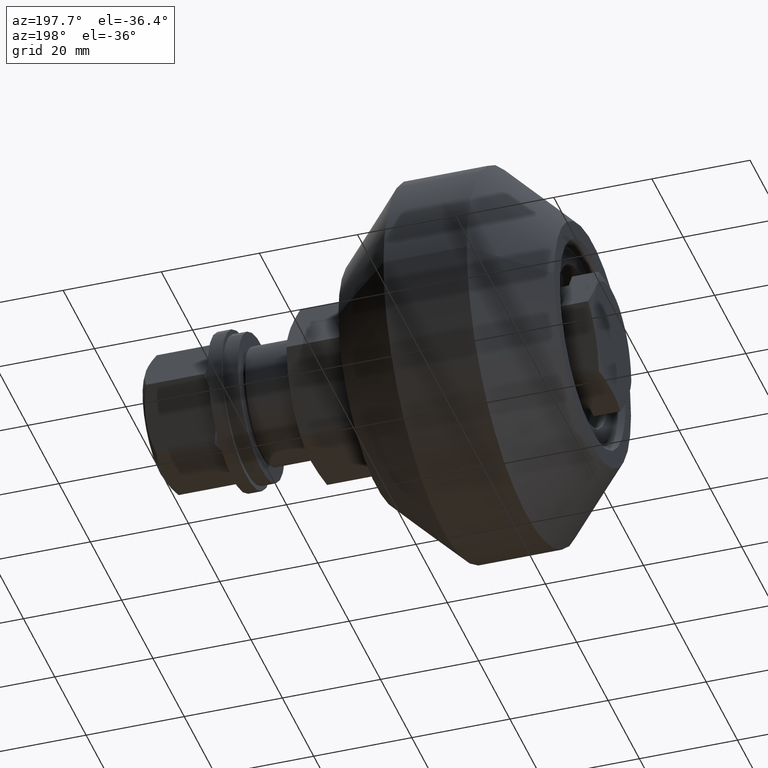
[diagram: clean part render]
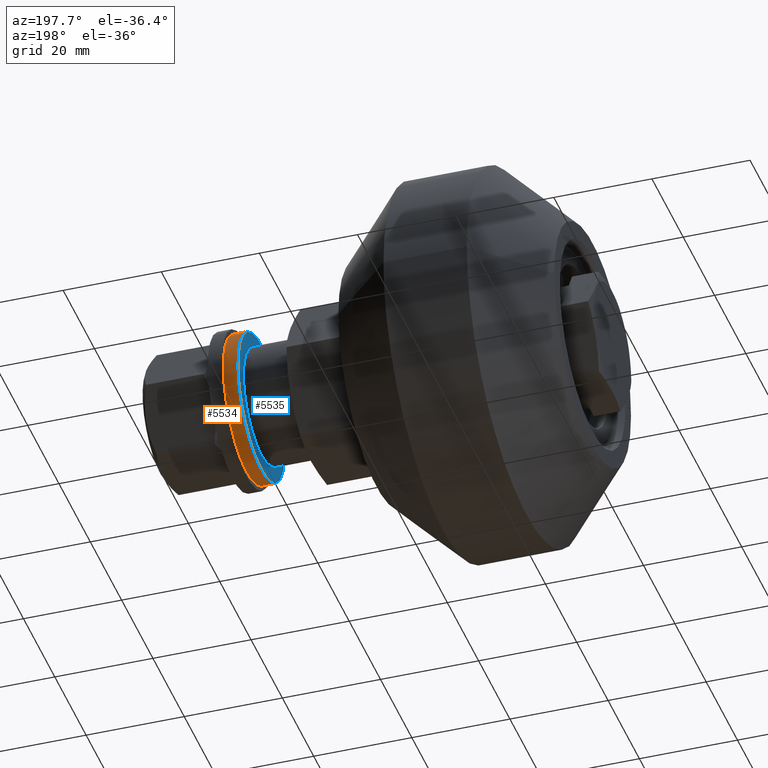
[diagram: same view with the hole feature highlighted: cylindrical wall and planar end face, labeled with their STEP entity ids]
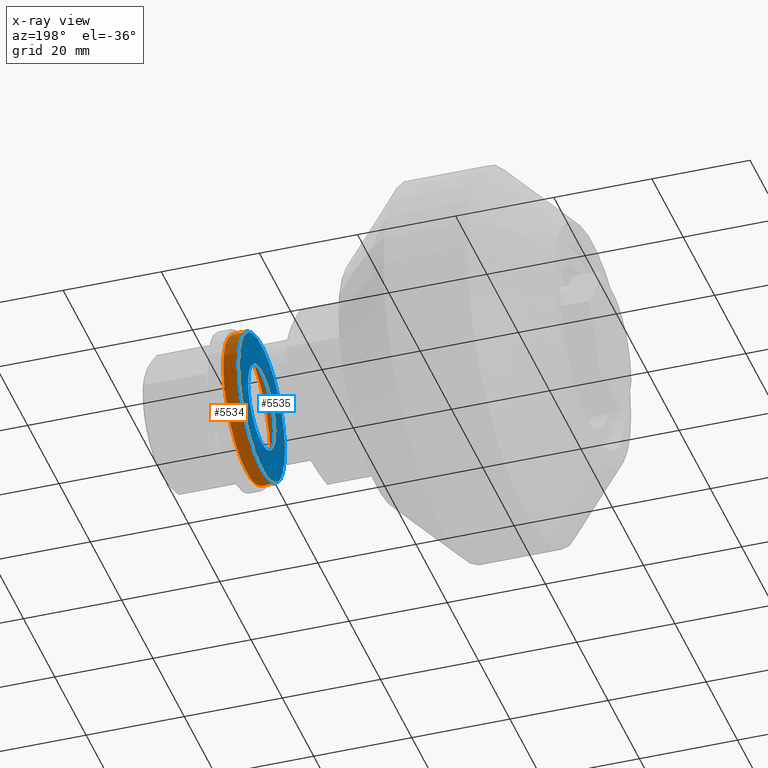
[diagram: x-ray of the same camera — body ghosted, the hole faces saturated]
A machine part, auxiliary view. The highlighted faces form one hole feature of diameter 30 mm: the cylindrical wall (entity #5534, orange) and its adjacent planar end face (entity #5535, blue) — they share a circular edge in the B-rep.
The next image is the same camera in x-ray (body ghosted, the hole faces saturated) — the bore reads through the body.
Wall:
#581=CYLINDRICAL_SURFACE('',#6230,15.);
#797=FACE_OUTER_BOUND('',#1098,.T.);
#1098=EDGE_LOOP('',(#4763,#4764,#4765,#4766));
#1491=LINE('',#9470,#1809);
#1809=VECTOR('',#7523,15.);
#2060=CIRCLE('',#6231,15.);
#2061=CIRCLE('',#6232,15.);
#2566=VERTEX_POINT('',#9467);
#2567=VERTEX_POINT('',#9469);
#3334=EDGE_CURVE('',#2566,#2566,#2060,.T.);
#3335=EDGE_CURVE('',#2566,#2567,#1491,.T.);
#3336=EDGE_CURVE('',#2567,#2567,#2061,.T.);
#4763=ORIENTED_EDGE('',*,*,#3334,.T.);
#4764=ORIENTED_EDGE('',*,*,#3335,.T.);
#4765=ORIENTED_EDGE('',*,*,#3336,.F.);
#4766=ORIENTED_EDGE('',*,*,#3335,.F.);
#5534=ADVANCED_FACE('',(#797),#581,.T.);
#6230=AXIS2_PLACEMENT_3D('',#9466,#7519,#7520);
#6231=AXIS2_PLACEMENT_3D('',#9468,#7521,#7522);
#6232=AXIS2_PLACEMENT_3D('',#9471,#7524,#7525);
#7519=DIRECTION('center_axis',(1.,0.,0.));
#7520=DIRECTION('ref_axis',(0.,-1.,0.));
#7521=DIRECTION('center_axis',(-1.,0.,0.));
#7522=DIRECTION('ref_axis',(0.,-1.,0.));
#7523=DIRECTION('',(-1.,0.,0.));
#7524=DIRECTION('center_axis',(-1.,0.,0.));
#7525=DIRECTION('ref_axis',(0.,-1.,0.));
#9466=CARTESIAN_POINT('Origin',(0.,0.,0.));
#9467=CARTESIAN_POINT('',(3.,15.,1.83697019872103E-15));
#9468=CARTESIAN_POINT('Origin',(3.,0.,0.));
#9469=CARTESIAN_POINT('',(0.,15.,1.83697019872103E-15));
#9470=CARTESIAN_POINT('',(0.,15.,1.83697019872103E-15));
#9471=CARTESIAN_POINT('Origin',(0.,0.,0.));
End face:
#162=FACE_BOUND('',#1100,.T.);
#546=PLANE('',#6233);
#798=FACE_OUTER_BOUND('',#1099,.T.);
#1099=EDGE_LOOP('',(#4767));
#1100=EDGE_LOOP('',(#4768));
#2059=CIRCLE('',#6229,8.5);
#2060=CIRCLE('',#6231,15.);
#2565=VERTEX_POINT('',#9463);
#2566=VERTEX_POINT('',#9467);
#3333=EDGE_CURVE('',#2565,#2565,#2059,.T.);
#3334=EDGE_CURVE('',#2566,#2566,#2060,.T.);
#4767=ORIENTED_EDGE('',*,*,#3334,.F.);
#4768=ORIENTED_EDGE('',*,*,#3333,.T.);
#5535=ADVANCED_FACE('',(#798,#162),#546,.F.);
#6229=AXIS2_PLACEMENT_3D('',#9465,#7517,#7518);
#6231=AXIS2_PLACEMENT_3D('',#9468,#7521,#7522);
#6233=AXIS2_PLACEMENT_3D('',#9472,#7526,#7527);
#7517=DIRECTION('center_axis',(-1.,0.,0.));
#7518=DIRECTION('ref_axis',(0.,-1.,0.));
#7521=DIRECTION('center_axis',(-1.,0.,0.));
#7522=DIRECTION('ref_axis',(0.,-1.,0.));
#7526=DIRECTION('center_axis',(-1.,0.,0.));
#7527=DIRECTION('ref_axis',(0.,0.,1.));
#9463=CARTESIAN_POINT('',(3.,8.5,1.04094977927525E-15));
#9465=CARTESIAN_POINT('Origin',(3.,0.,0.));
#9467=CARTESIAN_POINT('',(3.,15.,1.83697019872103E-15));
#9468=CARTESIAN_POINT('Origin',(3.,0.,0.));
#9472=CARTESIAN_POINT('Origin',(3.,0.,0.));